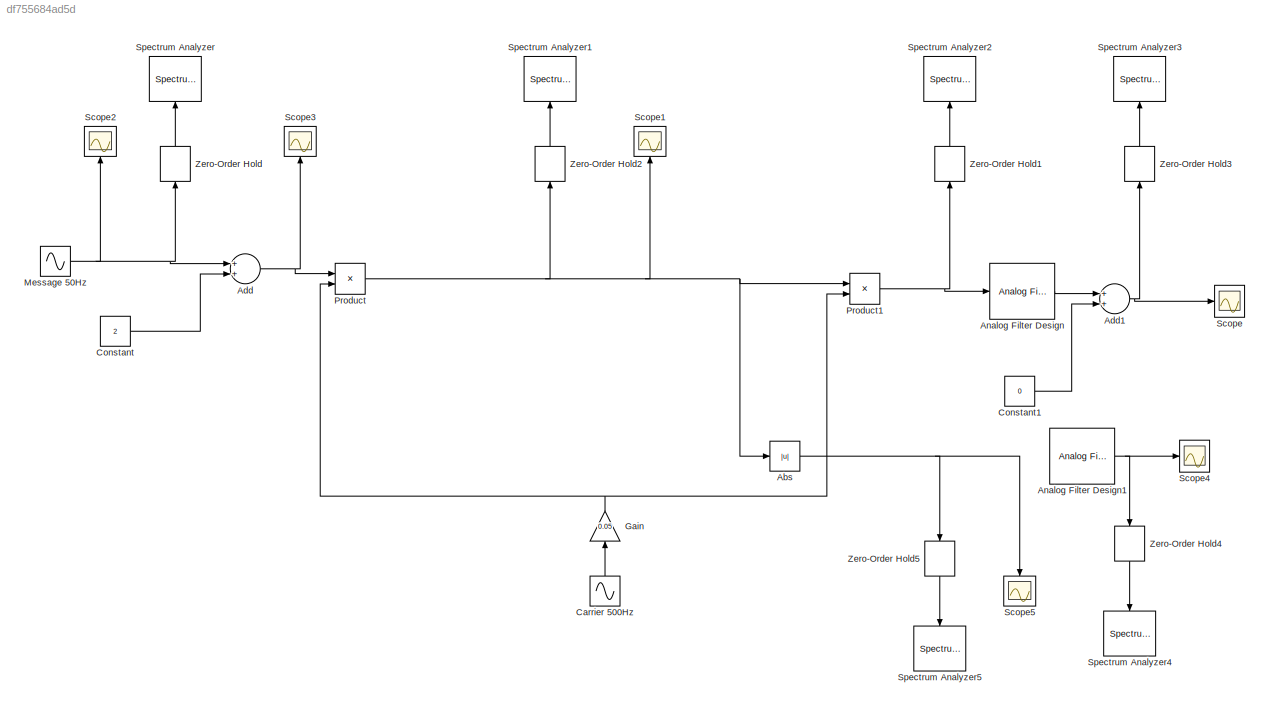
MODEL slx_df755684ad5d
KIND model
CONFIG AbsTol = auto
CONFIG FixedStep = auto
CONFIG MaxStep = auto
CONFIG MinStep = auto
CONFIG RelTol = 1e-3
CONFIG SampleTimeConstraint = Unconstrained
CONFIG Solver = ode3
CONFIG SolverMode = SingleTasking
CONFIG SolverName = ode3
CONFIG StartTime = 0.0
CONFIG StopTime = inf
BLOCK [Abs] Abs
  SaturateOnIntegerOverflow = off
BLOCK [Sum] Add
  InputSameDT = off
  OutDataTypeStr = Inherit: Inherit via internal rule
  Ports = [2, 1]
  SaturateOnIntegerOverflow = off
BLOCK [Sum] Add1
  InputSameDT = off
  OutDataTypeStr = Inherit: Inherit via internal rule
  Ports = [2, 1]
  SaturateOnIntegerOverflow = off
BLOCK [Reference] Analog Filter Design  REF=dsparch4/Analog
Filter Design
  Ports = [1, 1]
  SourceBlock = dsparch4/Analog\nFilter Design
  SourceType = Analog Filter Design
BLOCK [Reference] Analog Filter Design1  REF=dsparch4/Analog
Filter Design
  Ports = [1, 1]
  SourceBlock = dsparch4/Analog\nFilter Design
  SourceType = Analog Filter Design
BLOCK [Sin] Carrier 500Hz
  Frequency = 100*pi
  Ports = [0, 1]
  SampleTime = 0
BLOCK [Constant] Constant
  Value = 2
BLOCK [Constant] Constant1
  Value = 0
BLOCK [Gain] Gain
  Gain = 0.05
  OutDataTypeStr = Inherit: Inherit via internal rule
  ParamDataTypeStr = Inherit: Inherit via internal rule
  SaturateOnIntegerOverflow = off
BLOCK [Sin] Message 50Hz
  Frequency = 10*pi
  Ports = [0, 1]
  SampleTime = 0
  Samples = 5
BLOCK [Product] Product
  InputSameDT = off
  OutDataTypeStr = Inherit: Inherit via internal rule
  Ports = [2, 1]
  RndMeth = Floor
  SaturateOnIntegerOverflow = off
BLOCK [Product] Product1
  InputSameDT = off
  OutDataTypeStr = Inherit: Inherit via internal rule
  Ports = [2, 1]
  RndMeth = Floor
  SaturateOnIntegerOverflow = off
BLOCK [Scope] Scope
  Ports = [1]
  ScopeSpecificationString = Simulink.scopes.TimeScopeBlockCfg('CurrentConfiguration', extmgr.ConfigurationSet(extmgr.Configuration('Core','General UI',true),extmgr.Configuration('Core','Source UI',true),extmgr.Configuration('Sources','WiredSimulink',true,'DataLoggingVariableName','ScopeData1'),extmgr.Configuration('Visuals','Time Domain',true,'SerializedDisplays',{struct('MinYLimReal','0.00118','MaxYLimReal','0.00379','YLabe...<+1409ch>
BLOCK [Scope] Scope1
  Ports = [1]
  ScopeSpecificationString = Simulink.scopes.TimeScopeBlockCfg('CurrentConfiguration', extmgr.ConfigurationSet(extmgr.Configuration('Core','General UI',true),extmgr.Configuration('Core','Source UI',true),extmgr.Configuration('Sources','WiredSimulink',true,'DataLoggingVariableName','ScopeData1'),extmgr.Configuration('Visuals','Time Domain',true,'SerializedDisplays',{struct('MinYLimReal','-0.16066','MaxYLimReal','0.1586','YLabe...<+1383ch>
BLOCK [Scope] Scope2
  Ports = [1]
  ScopeSpecificationString = Simulink.scopes.TimeScopeBlockCfg('CurrentConfiguration', extmgr.ConfigurationSet(extmgr.Configuration('Core','General UI',true),extmgr.Configuration('Core','Source UI',true),extmgr.Configuration('Sources','WiredSimulink',true,'DataLoggingVariableName','ScopeData2'),extmgr.Configuration('Visuals','Time Domain',true,'SerializedDisplays',{struct('MinYLimReal','-1.0534','MaxYLimReal','1.03163','YLabe...<+1439ch>
BLOCK [Scope] Scope3
  Ports = [1]
  ScopeSpecificationString = Simulink.scopes.TimeScopeBlockCfg('CurrentConfiguration', extmgr.ConfigurationSet(extmgr.Configuration('Core','General UI',true),extmgr.Configuration('Core','Source UI',true),extmgr.Configuration('Sources','WiredSimulink',true,'DataLoggingVariableName','ScopeData1'),extmgr.Configuration('Visuals','Time Domain',true,'SerializedDisplays',{struct('MinYLimReal','0.75','MaxYLimReal','3.25','YLabelReal'...<+1336ch>
BLOCK [Scope] Scope4
  Ports = [1]
  ScopeSpecificationString = Simulink.scopes.TimeScopeBlockCfg('CurrentConfiguration', extmgr.ConfigurationSet(extmgr.Configuration('Core','General UI',true),extmgr.Configuration('Core','Source UI',true),extmgr.Configuration('Sources','WiredSimulink',true,'DataLoggingVariableName','ScopeData1'),extmgr.Configuration('Visuals','Time Domain',true,'SerializedDisplays',{struct('MinYLimReal','0.00118','MaxYLimReal','0.00379','YLabe...<+1426ch>
BLOCK [Scope] Scope5
  Ports = [1]
  ScopeSpecificationString = Simulink.scopes.TimeScopeBlockCfg('CurrentConfiguration', extmgr.ConfigurationSet(extmgr.Configuration('Core','General UI',true),extmgr.Configuration('Core','Source UI',true),extmgr.Configuration('Sources','WiredSimulink',true,'DataLoggingVariableName','ScopeData2'),extmgr.Configuration('Visuals','Time Domain',true,'SerializedDisplays',{struct('MinYLimReal','0.01807','MaxYLimReal','0.15082','YLabe...<+1434ch>
BLOCK [SpectrumAnalyzer] Spectrum Analyzer
  NumInputPorts = 1
  Ports = [1]
  ScopeSpecificationString = spbscopes.SpectrumAnalyzerBlockCfg('CurrentConfiguration', extmgr.ConfigurationSet(extmgr.Configuration('Core','General UI',true),extmgr.Configuration('Core','Source UI',true),extmgr.Configuration('Sources','WiredSimulink',true),extmgr.Configuration('Visuals','Spectrum',true,'AxesProperties',struct('Color',[0 0 0],'XColor',[0.686274509803922 0.686274509803922 0.686274509803922],'YColor',[0.6862745...<+1280ch>
BLOCK [SpectrumAnalyzer] Spectrum Analyzer1
  NumInputPorts = 1
  Ports = [1]
  ScopeSpecificationString = spbscopes.SpectrumAnalyzerBlockCfg('CurrentConfiguration', extmgr.ConfigurationSet(extmgr.Configuration('Core','General UI',true),extmgr.Configuration('Core','Source UI',true),extmgr.Configuration('Sources','WiredSimulink',true),extmgr.Configuration('Visuals','Spectrum',true,'AxesProperties',struct('Color',[0 0 0],'XColor',[0.686274509803922 0.686274509803922 0.686274509803922],'YColor',[0.6862745...<+1143ch>  <repeated x5 — deduplicated; at blocks: Spectrum Analyzer1, Spectrum Analyzer2, Spectrum Analyzer3, Spectrum Analyzer4, Spectrum Analyzer5>
BLOCK [SpectrumAnalyzer] Spectrum Analyzer2
  NumInputPorts = 1
  Ports = [1]
BLOCK [SpectrumAnalyzer] Spectrum Analyzer3
  NumInputPorts = 1
  Ports = [1]
BLOCK [SpectrumAnalyzer] Spectrum Analyzer4
  NumInputPorts = 1
  Ports = [1]
BLOCK [SpectrumAnalyzer] Spectrum Analyzer5
  NumInputPorts = 1
  Ports = [1]
BLOCK [ZeroOrderHold] Zero-Order Hold
  SampleTime = 1/150
BLOCK [ZeroOrderHold] Zero-Order Hold1
  SampleTime = 1/1500
BLOCK [ZeroOrderHold] Zero-Order Hold2
  SampleTime = 1/1500
BLOCK [ZeroOrderHold] Zero-Order Hold3
  SampleTime = 1/1500
BLOCK [ZeroOrderHold] Zero-Order Hold4
  SampleTime = 1/1500
BLOCK [ZeroOrderHold] Zero-Order Hold5
  SampleTime = 1/1500
NET Abs:1 -> Scope5:1, Zero-Order Hold5:1
NET Add1:1 -> Scope:1, Zero-Order Hold3:1
NET Add:1 -> Product:1, Scope3:1
NET Analog Filter Design1:1 -> Scope4:1, Zero-Order Hold4:1
LINE Analog Filter Design:1 -> Add1:1
LINE Carrier 500Hz:1 -> Gain:1
LINE Constant1:1 -> Add1:2
LINE Constant:1 -> Add:2
NET Gain:1 -> Product1:2, Product:2
NET Message 50Hz:1 -> Add:1, Scope2:1, Zero-Order Hold:1
NET Product1:1 -> Analog Filter Design:1, Zero-Order Hold1:1
NET Product:1 -> Abs:1, Product1:1, Scope1:1, Zero-Order Hold2:1
LINE Zero-Order Hold1:1 -> Spectrum Analyzer2:1
LINE Zero-Order Hold2:1 -> Spectrum Analyzer1:1
LINE Zero-Order Hold3:1 -> Spectrum Analyzer3:1
LINE Zero-Order Hold4:1 -> Spectrum Analyzer4:1
LINE Zero-Order Hold5:1 -> Spectrum Analyzer5:1
LINE Zero-Order Hold:1 -> Spectrum Analyzer:1
note: NET lines group one-source signal fan-out (src -> all destinations, sorted); 1:1 wires keep LINE
